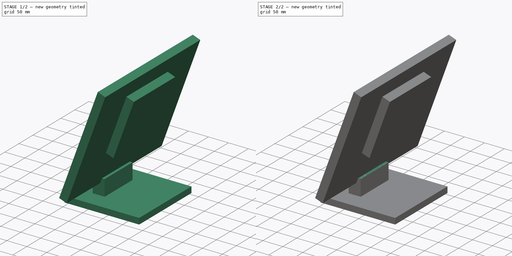
[diagram: build sequence overview — one tinted view per stage of 2, left to right]
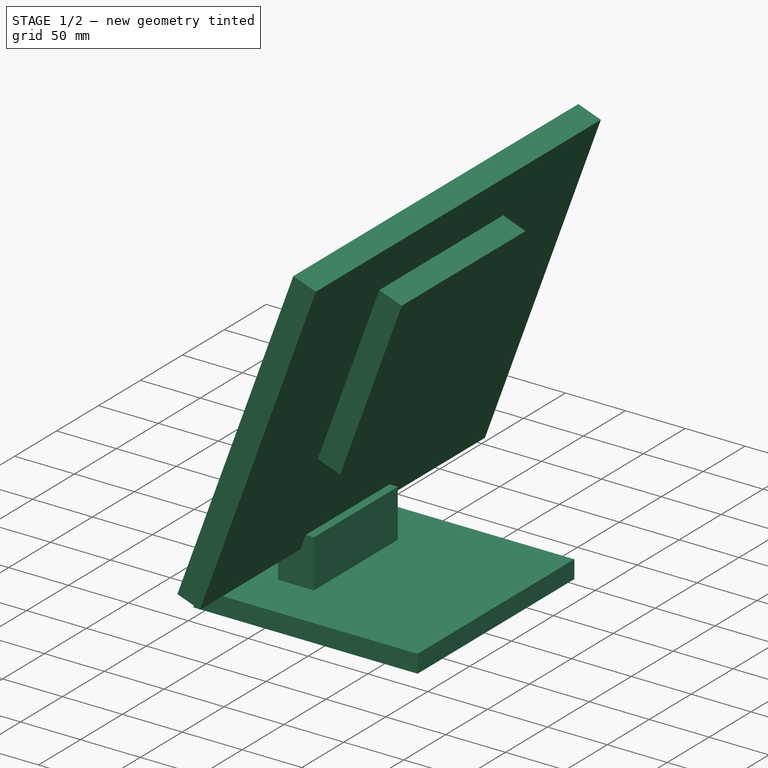
[diagram: stage 1 of 2 — iso view after this stage's code; geometry added in this stage tinted green]
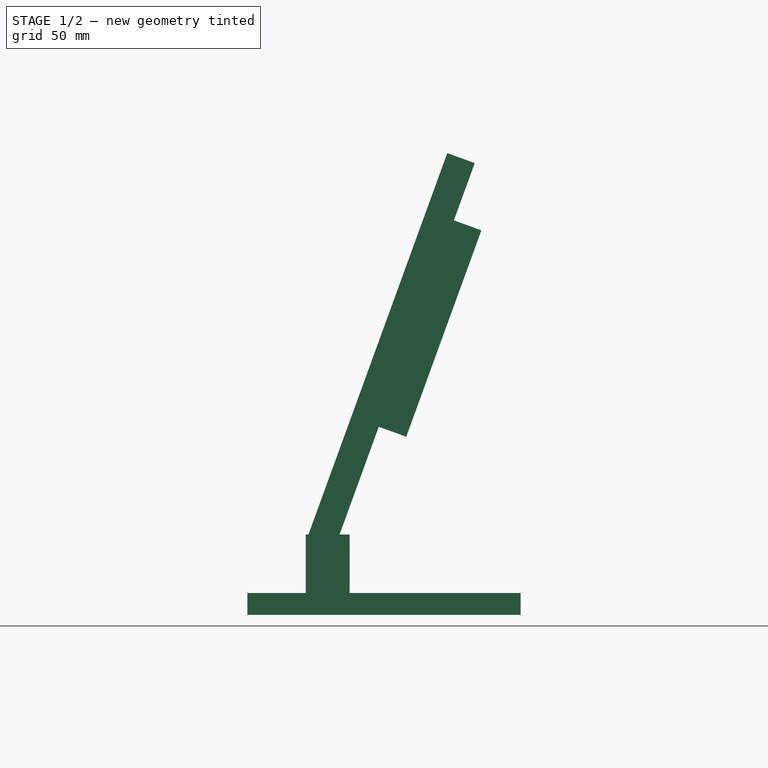
[diagram: stage 1 of 2 — front view after this stage's code; geometry added in this stage tinted green]
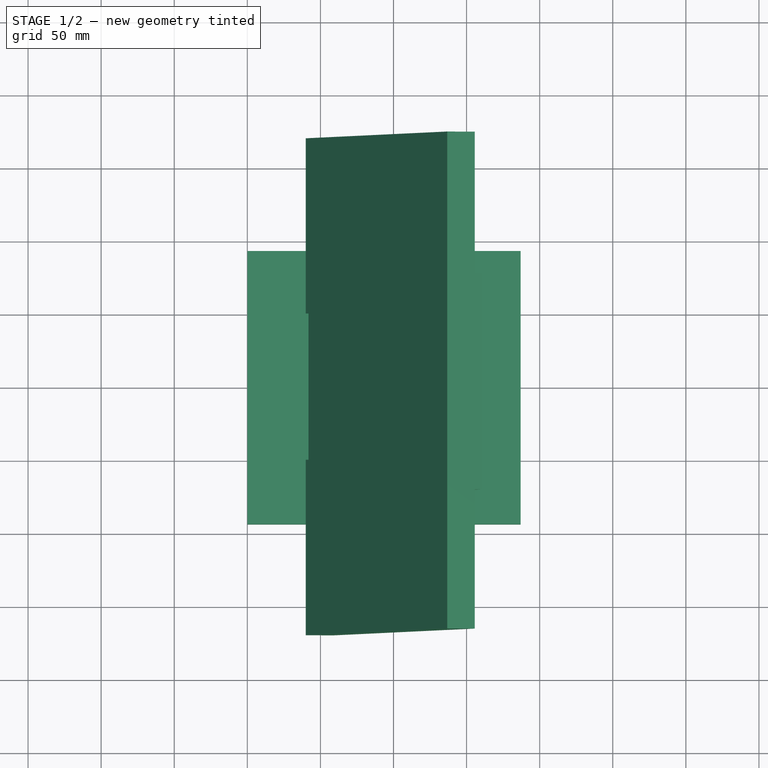
[diagram: stage 1 of 2 — top view after this stage's code; geometry added in this stage tinted green]
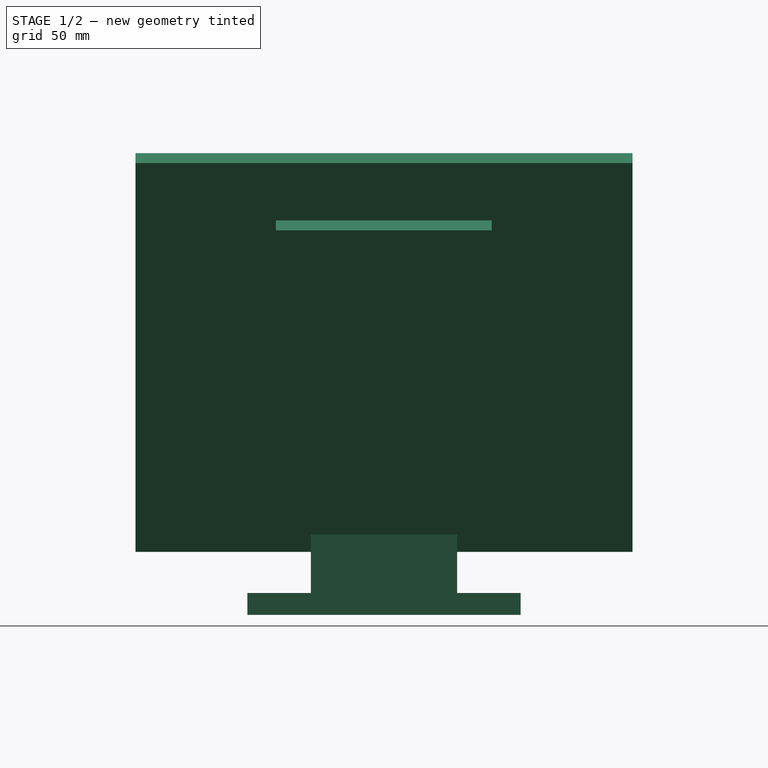
[diagram: stage 1 of 2 — right view after this stage's code; geometry added in this stage tinted green]
FCSTD DOCUMENT  (FreeCAD 0.16R6712 (Git))
Label: 1106_Monitor
License: All rights reserved
LicenseURL: http://en.wikipedia.org/wiki/All_rights_reserved
objects: Sketcher::SketchObject×4, PartDesign::Pad×4
note: 12 computed .brp shape members not serialized (recipe doc carries the construction recipe); baked Part::Feature solids carry a one-line shape summary decoded from their .brp

FEATURE [Sketcher::SketchObject] Sketch002
  Placement = pos=(0,0,0) rot=(1,0,0;1.5708rad)
  sketch-geometry (7):
    g0: LineSegment StartX=40 StartY=50 StartZ=0 EndX=136.792 EndY=315.933 EndZ=0
    g1: LineSegment StartX=136.792 StartY=315.933 StartZ=0 EndX=155.586 EndY=309.093 EndZ=0
    g2: LineSegment StartX=155.586 StartY=309.093 StartZ=0 EndX=58.7939 EndY=43.1596 EndZ=0
    g3: LineSegment StartX=58.7939 StartY=43.1596 StartZ=0 EndX=40 EndY=50 EndZ=0
    g4: LineSegment [constr] StartX=40 StartY=50 StartZ=0 EndX=0 EndY=0 EndZ=0
    g5: LineSegment [constr] StartX=0 StartY=0 StartZ=0 EndX=0 EndY=50 EndZ=0
    g6: LineSegment [constr] StartX=0 StartY=50 StartZ=0 EndX=40 EndY=50 EndZ=0
  constraints (19):
    c: Coincident(g2,g1)
    c: Coincident(g3,g2)
    c: Coincident(g3,g0)
    c: Perpendicular(g1,g0)
    c: Perpendicular(g2,g1)
    c: Perpendicular(g2,g3)
    c: Coincident(g1,g0)
    c: Distance(g1) = 20
    c: Distance(g2) = 283
    c: Coincident(g4,g0)
    c: Coincident(g4,g-1)
    c: Coincident(g5,g-1)
    c: PointOnObject(g5,g-2)
    c: Coincident(g6,g5)
    c: Coincident(g6,g0)
    c: Horizontal(g6)
    c: Distance(g5) = 50
    c: Distance(g6) = 40
    c: Angle(g0,g6) = 1.91986
FEATURE [PartDesign::Pad] Pad002
  Length = 170
  Length2 = 170
  Placement = pos=(0,0,0) rot=(1,0,0;1.5708rad)
  Sketch = -> Sketch002
  Type = 4
FEATURE [Sketcher::SketchObject] Sketch003
  Placement = pos=(38.0451,0,-13.8473) rot=(0.633687,0.633687,0.443713;2.30637rad)
  sketch-geometry (4):
    g0: LineSegment StartX=-73.9307 StartY=301.982 StartZ=0 EndX=73.7543 EndY=301.982 EndZ=0
    g1: LineSegment StartX=73.7543 StartY=301.982 StartZ=0 EndX=73.7543 EndY=151.718 EndZ=0
    g2: LineSegment StartX=73.7543 StartY=151.718 StartZ=0 EndX=-73.9307 EndY=151.718 EndZ=0
    g3: LineSegment StartX=-73.9307 StartY=151.718 StartZ=0 EndX=-73.9307 EndY=301.982 EndZ=0
  constraints (8):
    c: Coincident(g0,g1)
    c: Coincident(g1,g2)
    c: Coincident(g2,g3)
    c: Coincident(g3,g0)
    c: Horizontal(g0)
    c: Horizontal(g2)
    c: Vertical(g1)
    c: Vertical(g3)
FEATURE [PartDesign::Pad] Pad003
  Length = 20
  Length2 = 100
  Sketch = -> Sketch003
  Type = 0
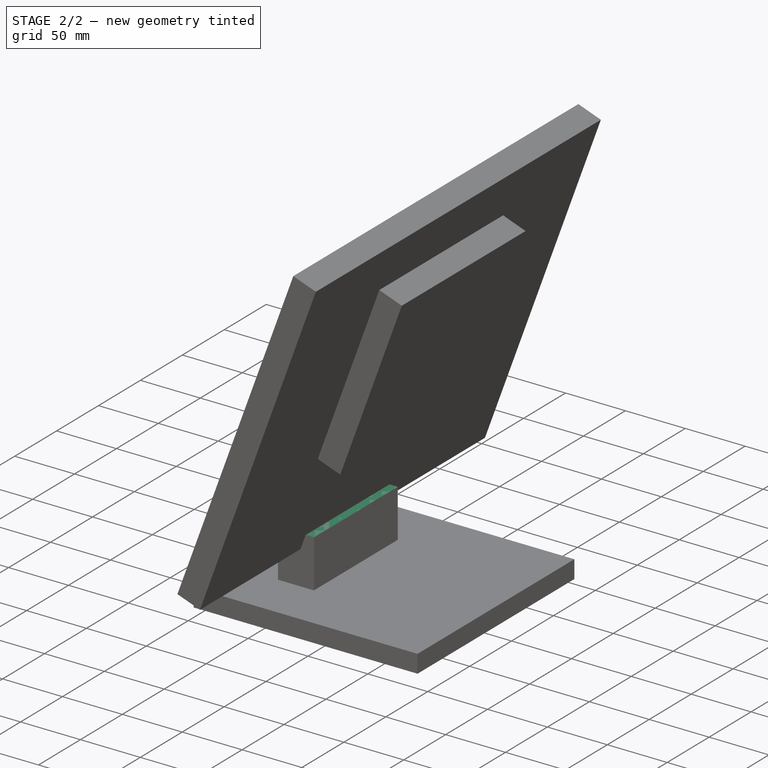
[diagram: stage 2 of 2 — iso view after this stage's code; geometry added in this stage tinted green]
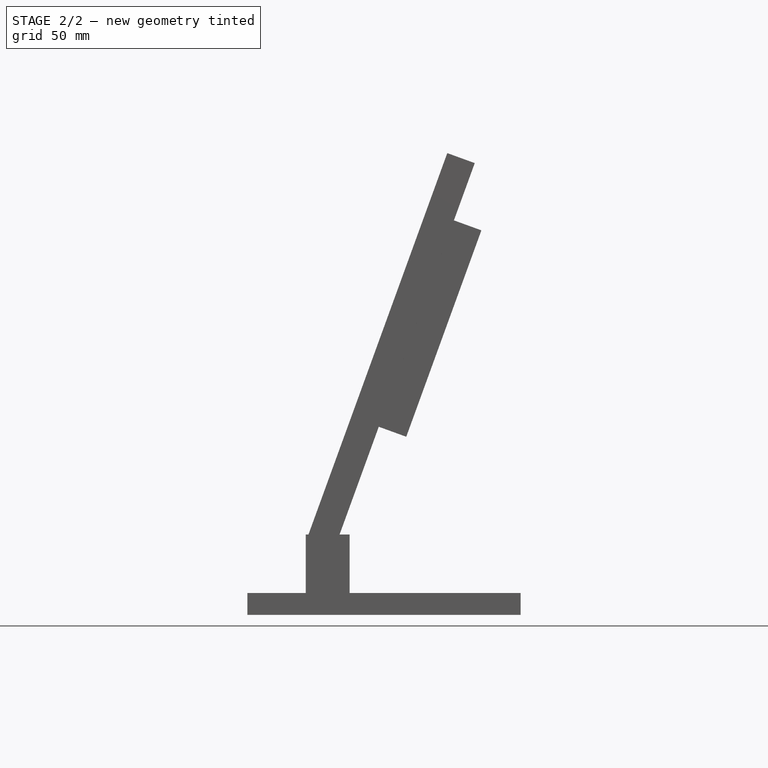
[diagram: stage 2 of 2 — front view after this stage's code; geometry added in this stage tinted green]
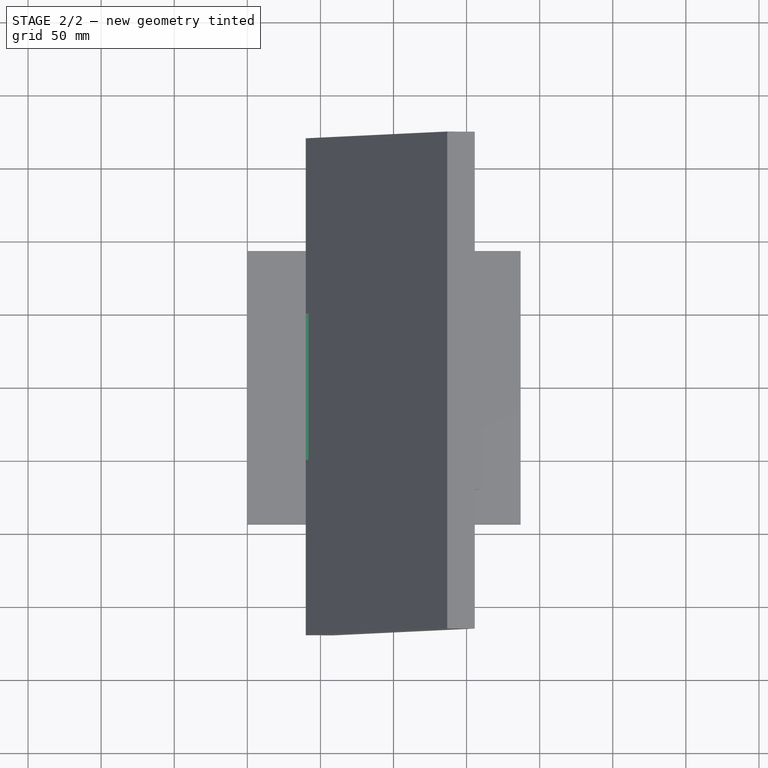
[diagram: stage 2 of 2 — top view after this stage's code; geometry added in this stage tinted green]
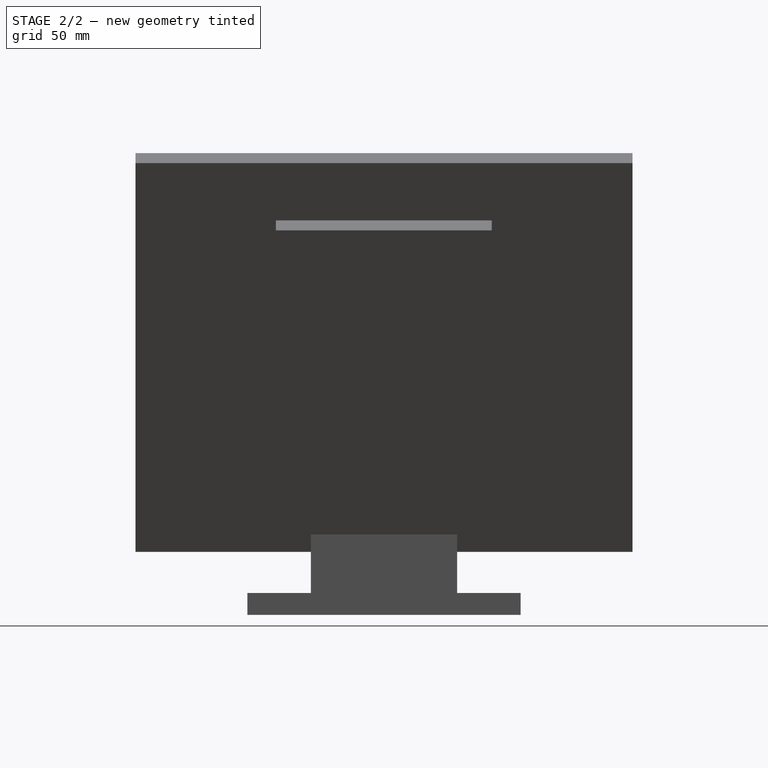
[diagram: stage 2 of 2 — right view after this stage's code; geometry added in this stage tinted green]
FEATURE [Sketcher::SketchObject] Sketch
  sketch-geometry (5):
    g0: LineSegment StartX=0 StartY=0 StartZ=0 EndX=0 EndY=93.5 EndZ=0
    g1: LineSegment StartX=0 StartY=93.5 StartZ=0 EndX=187 EndY=93.5 EndZ=0
    g2: LineSegment StartX=187 StartY=93.5 StartZ=0 EndX=187 EndY=-93.5 EndZ=0
    g3: LineSegment StartX=187 StartY=-93.5 StartZ=0 EndX=0 EndY=-93.5 EndZ=0
    g4: LineSegment StartX=0 StartY=-93.5 StartZ=0 EndX=0 EndY=0 EndZ=0
  constraints (14):
    c: Vertical(g0)
    c: Coincident(g1,g0)
    c: Horizontal(g1)
    c: Coincident(g2,g1)
    c: Vertical(g2)
    c: Horizontal(g3)
    c: Coincident(g4,g3)
    c: Coincident(g4,g0)
    c: Vertical(g4)
    c: Coincident(g0,g-1)
    c: Equal(g0,g4)
    c: Coincident(g2,g3)
    c: DistanceY(g2,g2) = 187
    c: Distance(g3) = 187
FEATURE [PartDesign::Pad] Pad
  Length = 15
  Length2 = 100
  Sketch = -> Sketch
  Type = 0
FEATURE [Sketcher::SketchObject] Sketch001
  Placement = pos=(0,0,15) rot=(0,0,1;0rad)
  Support = -> Pad [Face7]
  sketch-geometry (7):
    g0: LineSegment StartX=40 StartY=50 StartZ=0 EndX=40 EndY=0 EndZ=0
    g1: LineSegment StartX=40 StartY=0 StartZ=0 EndX=40 EndY=-50 EndZ=0
    g2: LineSegment StartX=40 StartY=-50 StartZ=0 EndX=70 EndY=-50 EndZ=0
    g3: LineSegment StartX=70 StartY=-50 StartZ=0 EndX=70 EndY=50 EndZ=0
    g4: LineSegment StartX=70 StartY=50 StartZ=0 EndX=40 EndY=50 EndZ=0
    g5: GeomPoint [constr] X=17.6177 Y=-16.6682 Z=0
    g6: LineSegment [constr] StartX=0 StartY=0 StartZ=0 EndX=40 EndY=0 EndZ=0
  constraints (17):
    c: Vertical(g0)
    c: Coincident(g1,g0)
    c: Vertical(g1)
    c: Coincident(g2,g1)
    c: Horizontal(g2)
    c: Coincident(g3,g2)
    c: Vertical(g3)
    c: Coincident(g4,g0)
    c: Coincident(g6,g-1)
    c: Coincident(g6,g0)
    c: Horizontal(g4)
    c: Distance(g2) = 30
    c: Horizontal(g6)
    c: Distance(g3) = 100
    c: Equal(g1,g0)
    c: Coincident(g3,g4)
    c: Distance(g6) = 40
FEATURE [PartDesign::Pad] Pad001
  Length = 40
  Length2 = 100
  Sketch = -> Sketch001
  Type = 0
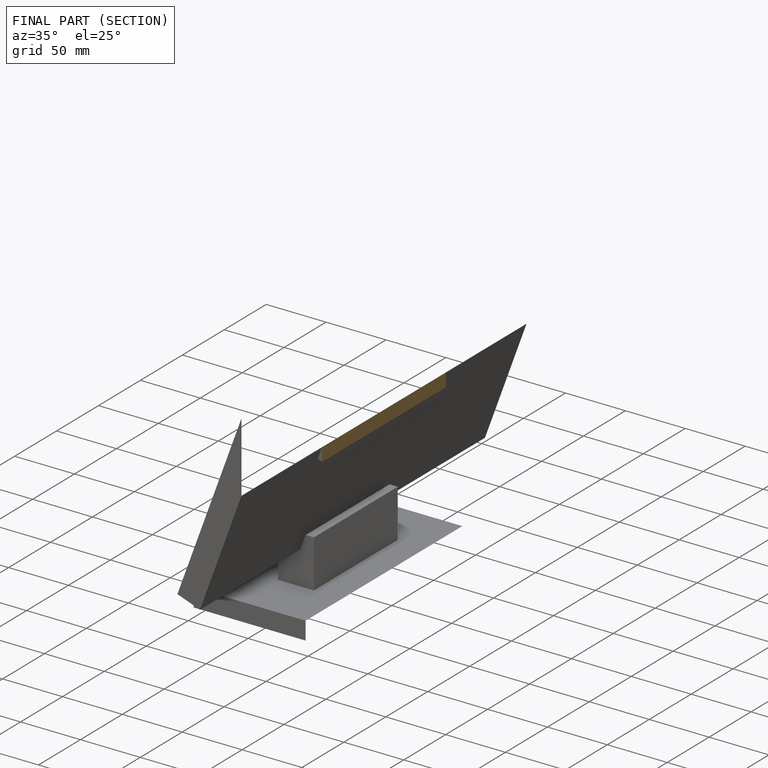
[diagram: finished part — half-section view (interior)]
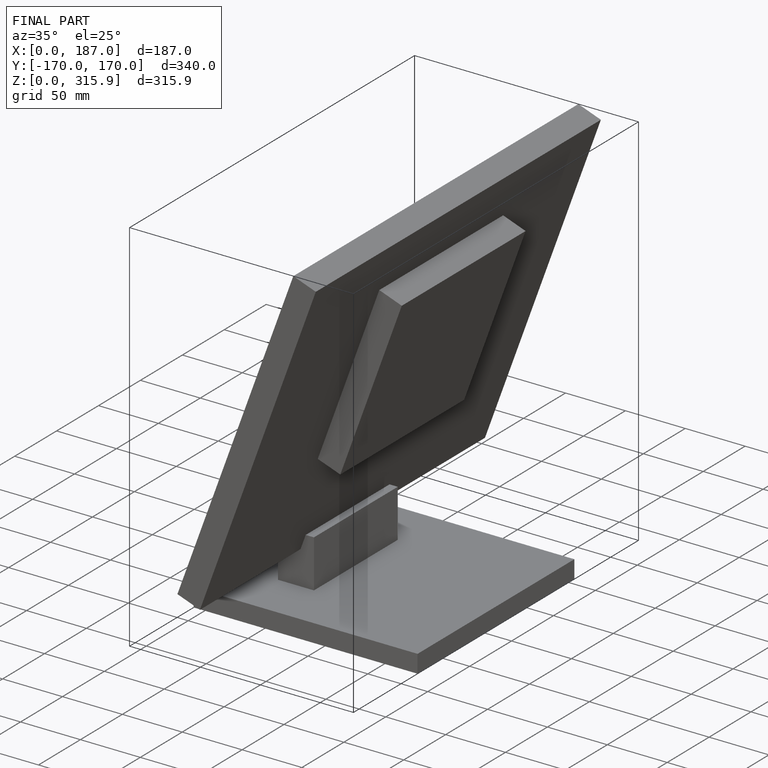
[diagram: finished part — iso view with bounding-box wireframe]
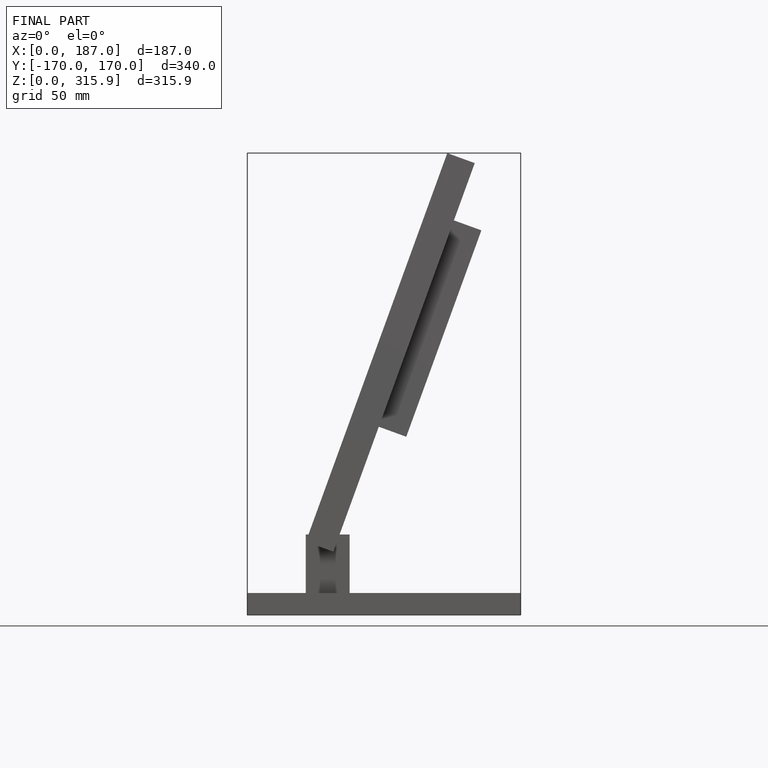
[diagram: finished part — front view with bounding-box wireframe]
